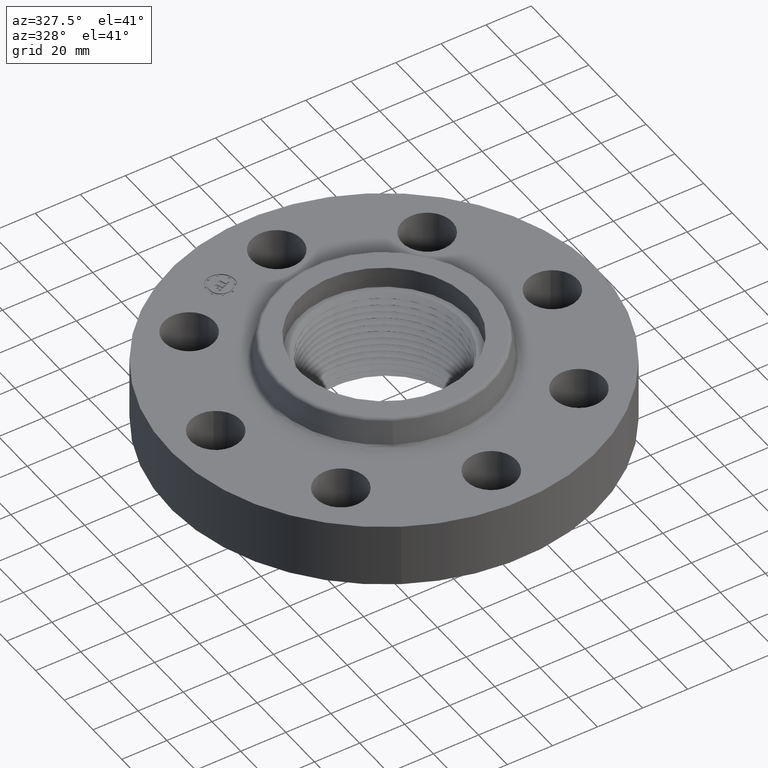
[diagram: clean part render]
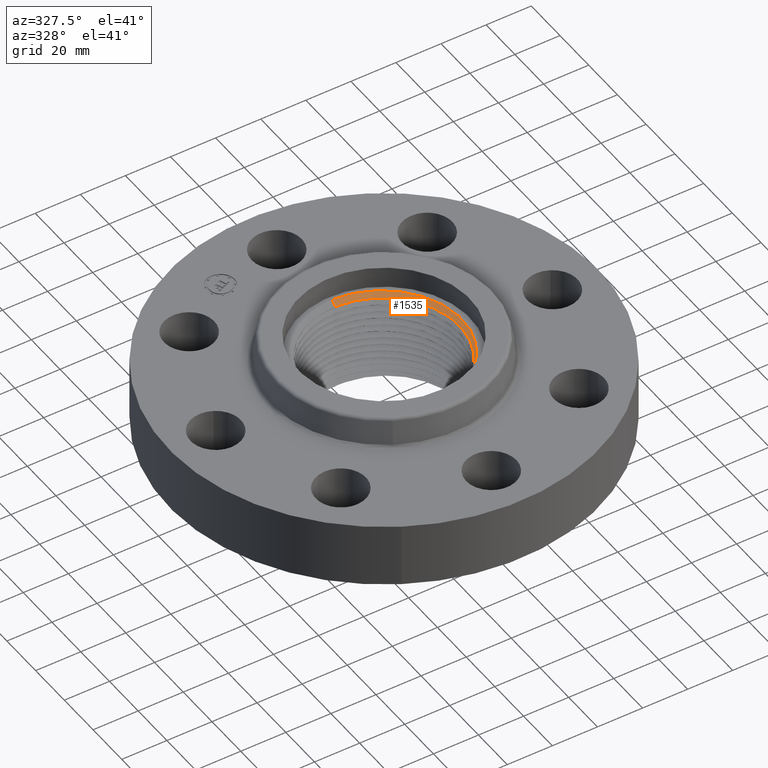
[diagram: same view with one face highlighted and labeled with its STEP entity id]
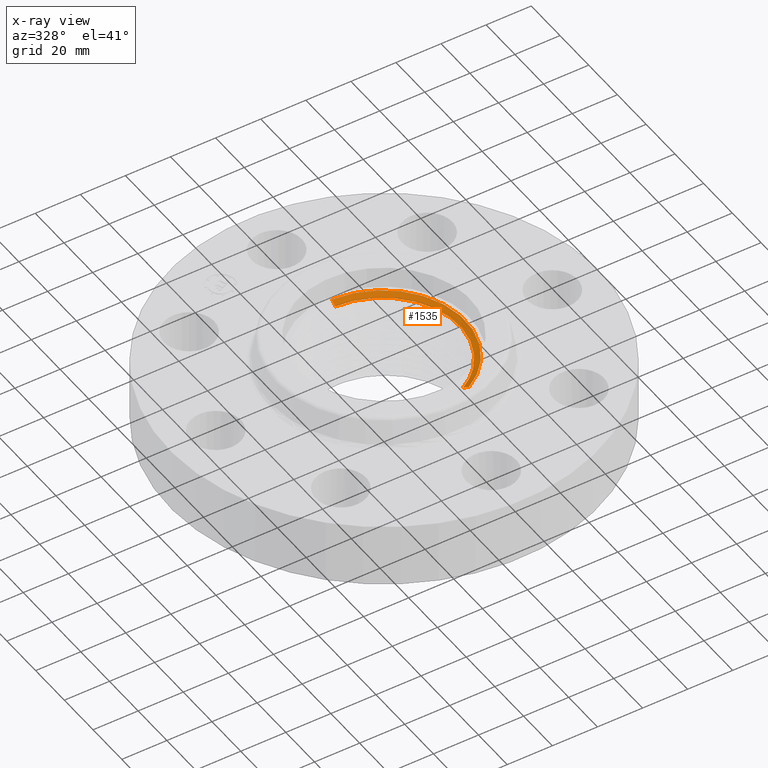
[diagram: x-ray of the same camera — body ghosted, the highlighted face saturated]
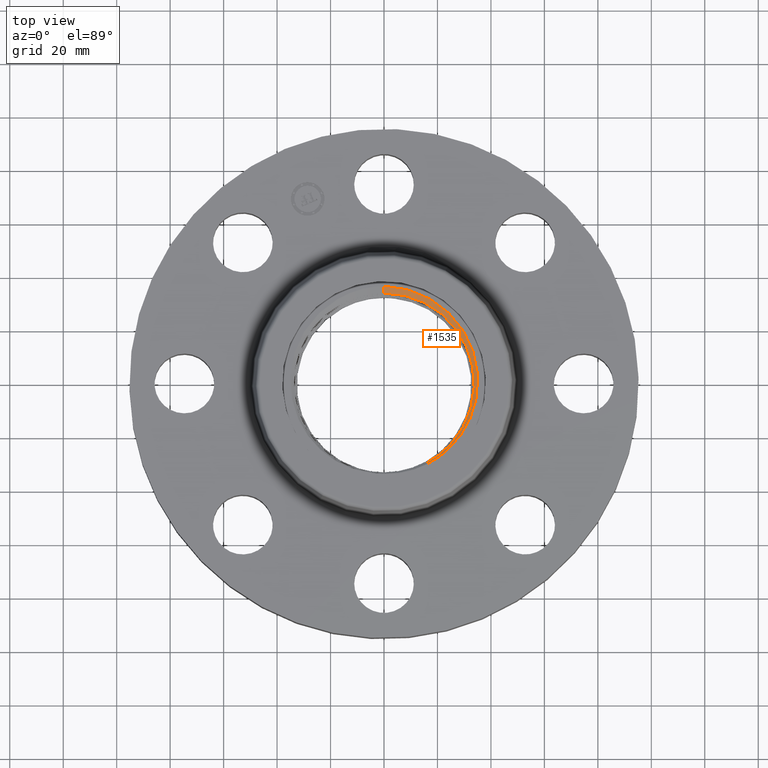
[diagram: same view with one face highlighted and labeled with its STEP entity id]
A machine part, auxiliary view. The second image highlights one B-rep face of the part: STEP entity #1535.
The next image is the same camera in x-ray: the body ghosted, the highlighted face saturated — about 0% of this face is hidden behind the body in this view.
A second angle (top view) of the same face is appended — the face is thin or edge-on in the first view.
In plain terms, the highlighted face is a freeform B-spline surface patch.
Its self-contained STEP definition (entity closure, byte-faithful):
#1449=CARTESIAN_POINT('Control Point',(1.69232159304E-006,1.32917223466,1.18909219792)) ;
#1450=CARTESIAN_POINT('Control Point',(1.82206701285E-006,1.43107560331,1.24843824631)) ;
#1451=CARTESIAN_POINT('Control Point',(0.351142980104,1.32900754782,1.18383649376)) ;
#1452=CARTESIAN_POINT('Control Point',(0.378064100523,1.43091088218,1.24318254214)) ;
#1453=CARTESIAN_POINT('Control Point',(0.702227567241,1.2128869991,1.17858000105)) ;
#1454=CARTESIAN_POINT('Control Point',(0.756073647553,1.30590025594,1.23792604943)) ;
#1455=CARTESIAN_POINT('Control Point',(1.00081791781,0.980897225772,1.17334047175)) ;
#1456=CARTESIAN_POINT('Control Point',(1.07757276589,1.05613139263,1.23268652049)) ;
#1457=CARTESIAN_POINT('Control Point',(1.39934541147,0.357836856786,1.16282437601)) ;
#1458=CARTESIAN_POINT('Control Point',(1.50669319291,0.38529549621,1.22217042404)) ;
#1459=CARTESIAN_POINT('Control Point',(1.3482008772,-0.379998704986,1.15230514852)) ;
#1460=CARTESIAN_POINT('Control Point',(1.45165329945,-0.409152640898,1.21165119725)) ;
#1461=CARTESIAN_POINT('Control Point',(1.19728522891,-0.726725311073,1.14706253226)) ;
#1462=CARTESIAN_POINT('Control Point',(1.28917091212,-0.782492643647,1.20640856171)) ;
#1463=CARTESIAN_POINT('Control Point',(0.944671373936,-0.996823574892,1.14180134467)) ;
#1464=CARTESIAN_POINT('Control Point',(1.01717907513,-1.07333106917,1.20114739304)) ;
#1465=CARTESIAN_POINT('Control Point',(0.636451224239,-1.16501744944,1.13653938185)) ;
#1466=CARTESIAN_POINT('Control Point',(0.685305246899,-1.25444664496,1.19588543022)) ;
#1468=CARTESIAN_POINT('Control Point',(0.637086326534,-1.16618002898,1.13731088048)) ;
#1469=CARTESIAN_POINT('Control Point',(0.685305246899,-1.25444664496,1.19588543022)) ;
#1470=CARTESIAN_POINT('Vertex',(0.685305246899,-1.25444664496,1.19588543022)) ;
#1472=CARTESIAN_POINT('Vertex',(0.637086326534,-1.16618002898,1.13731088048)) ;
#1476=CARTESIAN_POINT('Control Point',(1.82206701285E-006,1.43107560331,1.24843824631)) ;
#1477=CARTESIAN_POINT('Control Point',(0.378064100523,1.43091088218,1.24318254214)) ;
#1478=CARTESIAN_POINT('Control Point',(0.756073647553,1.30590025594,1.23792604943)) ;
#1479=CARTESIAN_POINT('Control Point',(1.07757276589,1.05613139263,1.23268652049)) ;
#1480=CARTESIAN_POINT('Control Point',(1.50669319291,0.38529549621,1.22217042404)) ;
#1481=CARTESIAN_POINT('Control Point',(1.45165329945,-0.409152640898,1.21165119725)) ;
#1482=CARTESIAN_POINT('Control Point',(1.28917091212,-0.782492643647,1.20640856171)) ;
#1483=CARTESIAN_POINT('Control Point',(1.01717907513,-1.07333106917,1.20114739304)) ;
#1484=CARTESIAN_POINT('Control Point',(0.685305246899,-1.25444664496,1.19588543022)) ;
#1485=CARTESIAN_POINT('Vertex',(1.8220670124E-006,1.43107560331,1.24843824631)) ;
#1489=CARTESIAN_POINT('Control Point',(1.69400828337E-006,1.33049697845,1.18986369655)) ;
#1490=CARTESIAN_POINT('Control Point',(1.82206701271E-006,1.43107560331,1.24843824631)) ;
#1491=CARTESIAN_POINT('Vertex',(1.69400828504E-006,1.33049697845,1.18986369655)) ;
#1495=CARTESIAN_POINT('Control Point',(1.69400828339E-006,1.33049697845,1.18986369655)) ;
#1496=CARTESIAN_POINT('Control Point',(0.069927542105,1.33046421548,1.18881812412)) ;
#1497=CARTESIAN_POINT('Control Point',(0.139850143998,1.32583765706,1.18777253592)) ;
#1498=CARTESIAN_POINT('Control Point',(0.209823763349,1.31659933486,1.18671999442)) ;
#1499=CARTESIAN_POINT('Control Point',(0.348550655785,1.28871161254,1.1846081436)) ;
#1500=CARTESIAN_POINT('Control Point',(0.482348779155,1.24275646418,1.18249682287)) ;
#1501=CARTESIAN_POINT('Control Point',(0.547384521913,1.21541706364,1.18144481172)) ;
#1502=CARTESIAN_POINT('Control Point',(0.672769657575,1.15281045754,1.17935375143)) ;
#1503=CARTESIAN_POINT('Control Point',(0.788872115005,1.07434494658,1.17726269886)) ;
#1504=CARTESIAN_POINT('Control Point',(0.844565323871,1.03114542763,1.17621151442)) ;
#1505=CARTESIAN_POINT('Control Point',(0.950105016737,0.937357687418,1.17410399678)) ;
#1506=CARTESIAN_POINT('Control Point',(1.04236433766,0.830469057765,1.17199611035)) ;
#1507=CARTESIAN_POINT('Control Point',(1.08475949446,0.774151242436,1.17094455662)) ;
#1508=CARTESIAN_POINT('Control Point',(1.16175241211,0.656596131237,1.16884698681)) ;
#1509=CARTESIAN_POINT('Control Point',(1.22266201632,0.529930174901,1.16674938817)) ;
#1510=CARTESIAN_POINT('Control Point',(1.24893938336,0.464535650511,1.16569840942)) ;
#1511=CARTESIAN_POINT('Control Point',(1.29259259517,0.330982629117,1.16360081743)) ;
#1512=CARTESIAN_POINT('Control Point',(1.31834109102,0.192863312731,1.16150316148)) ;
#1513=CARTESIAN_POINT('Control Point',(1.32672532623,0.122783577236,1.16044999323)) ;
#1514=CARTESIAN_POINT('Control Point',(1.33406816432,-0.0185256230713,1.15833687825)) ;
#1515=CARTESIAN_POINT('Control Point',(1.32267493989,-0.159533869172,1.15622429604)) ;
#1516=CARTESIAN_POINT('Control Point',(1.31228819916,-0.229312160048,1.15517166082)) ;
#1517=CARTESIAN_POINT('Control Point',(1.28266874166,-0.366288801065,1.15307937773)) ;
#1518=CARTESIAN_POINT('Control Point',(1.2353764903,-0.498193861516,1.15098710235)) ;
#1519=CARTESIAN_POINT('Control Point',(1.20730092817,-0.562842802844,1.14993529554)) ;
#1520=CARTESIAN_POINT('Control Point',(1.14253909789,-0.688301717819,1.14782652077)) ;
#1521=CARTESIAN_POINT('Control Point',(1.06178935726,-0.804127918797,1.14571737394)) ;
#1522=CARTESIAN_POINT('Control Point',(1.0177046018,-0.859131294572,1.14466519457)) ;
#1523=CARTESIAN_POINT('Control Point',(0.922828395916,-0.962804662674,1.1425661953)) ;
#1524=CARTESIAN_POINT('Control Point',(0.815138791447,-1.05313619097,1.14046716761)) ;
#1525=CARTESIAN_POINT('Control Point',(0.758256238312,-1.09476440902,1.13941537532)) ;
#1526=CARTESIAN_POINT('Control Point',(0.698784049965,-1.13251187894,1.13836314018)) ;
#1527=CARTESIAN_POINT('Control Point',(0.637086886502,-1.16617972341,1.13731089003)) ;
#1530=ORIENTED_EDGE('',*,*,#1474,.F.) ;
#1531=ORIENTED_EDGE('',*,*,#1487,.F.) ;
#1532=ORIENTED_EDGE('',*,*,#1493,.T.) ;
#1533=ORIENTED_EDGE('',*,*,#1528,.T.) ;
#1535=ADVANCED_FACE('PartBody',(#1534),#1448,.T.) ;
#1467=B_SPLINE_CURVE_WITH_KNOTS('',1,(#1468,#1469),.UNSPECIFIED.,.F.,.U.,(2,2),(-1.45870574757,1.49764450472),.UNSPECIFIED.) ;
#1475=B_SPLINE_CURVE_WITH_KNOTS('',5,(#1476,#1477,#1478,#1479,#1480,#1481,#1482,#1483,#1484),.UNSPECIFIED.,.F.,.U.,(6,3,6),(0.,46.3723400811,92.7447786781),.UNSPECIFIED.) ;
#1488=B_SPLINE_CURVE_WITH_KNOTS('',1,(#1489,#1490),.UNSPECIFIED.,.F.,.U.,(2,2),(-1.4587057476,1.49764450472),.UNSPECIFIED.) ;
#1494=B_SPLINE_CURVE_WITH_KNOTS('',5,(#1495,#1496,#1497,#1498,#1499,#1500,#1501,#1502,#1503,#1504,#1505,#1506,#1507,#1508,#1509,#1510,#1511,#1512,#1513,#1514,#1515,#1516,#1517,#1518,#1519,#1520,#1521,#1522,#1523,#1524,#1525,#1526,#1527),.UNSPECIFIED.,.F.,.U.,(6,3,3,3,3,3,3,3,3,3,6),(0.,12.895815791,25.791631582,38.703025841,51.6144200999,64.5786249144,77.4781075777,90.377590241,103.292639152,116.207688063,129.177981827),.UNSPECIFIED.) ;
#1448=B_SPLINE_SURFACE_WITH_KNOTS('',5,1,((#1449,#1450),(#1451,#1452),(#1453,#1454),(#1455,#1456),(#1457,#1458),(#1459,#1460),(#1461,#1462),(#1463,#1464),(#1465,#1466)),.UNSPECIFIED.,.F.,.F.,.U.,(6,3,6),(2,2),(0.,46.3723400811,92.7447786781),(-1.49764450472,1.49764450472),.UNSPECIFIED.) ;
#1474=EDGE_CURVE('',#1471,#1473,#1467,.F.) ;
#1487=EDGE_CURVE('',#1486,#1471,#1475,.T.) ;
#1493=EDGE_CURVE('',#1486,#1492,#1488,.F.) ;
#1528=EDGE_CURVE('',#1492,#1473,#1494,.T.) ;
#1529=EDGE_LOOP('',(#1530,#1531,#1532,#1533)) ;
#1534=FACE_OUTER_BOUND('',#1529,.T.) ;
#1471=VERTEX_POINT('',#1470) ;
#1473=VERTEX_POINT('',#1472) ;
#1486=VERTEX_POINT('',#1485) ;
#1492=VERTEX_POINT('',#1491) ;